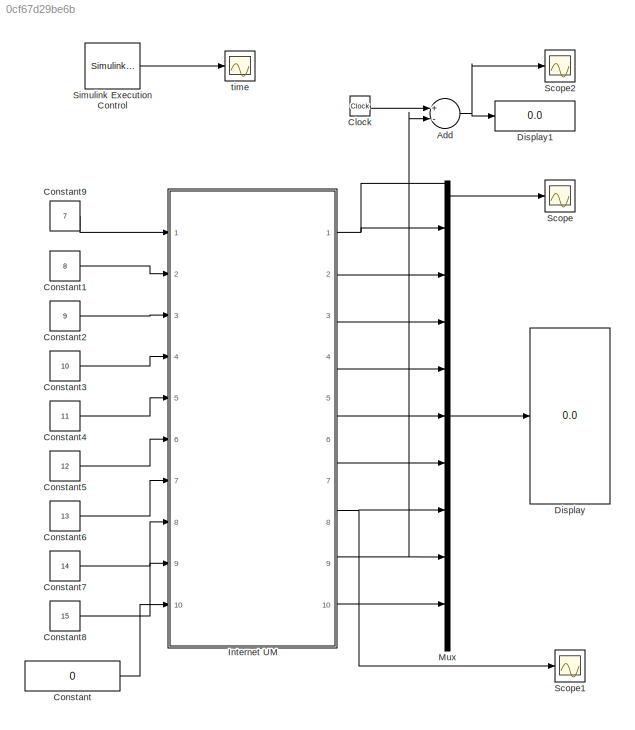
MODEL slx_0cf67d29be6b
KIND model
BLOCK [Sum] Add
  InputSameDT = off
  Inputs = +-
  OutDataTypeStr = Inherit: Inherit via internal rule
  Ports = [2, 1]
  SaturateOnIntegerOverflow = off
BLOCK [Clock] Clock
BLOCK [Constant] Constant
  Value = 0
BLOCK [Constant] Constant1
  Value = 8
BLOCK [Constant] Constant2
  Value = 9
BLOCK [Constant] Constant3
  Value = 10
BLOCK [Constant] Constant4
  Value = 11
BLOCK [Constant] Constant5
  Value = 12
BLOCK [Constant] Constant6
  Value = 13
BLOCK [Constant] Constant7
  Value = 14
BLOCK [Constant] Constant8
  Value = 15
BLOCK [Constant] Constant9
  Value = 7
BLOCK [Display] Display
  Decimation = 1
  Ports = [1]
BLOCK [Display] Display1
  Decimation = 1
  Ports = [1]
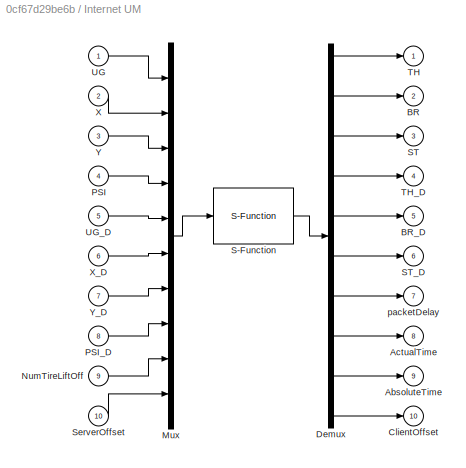
BLOCK [SubSystem] Internet UM
  Ports = [10, 10]
  RequestExecContextInheritance = off
BLOCK [Outport] Internet UM/AbsoluteTime
  IconDisplay = Port number
  Port = 9
BLOCK [Outport] Internet UM/ActualTime
  IconDisplay = Port number
  Port = 8
BLOCK [Outport] Internet UM/BR
  IconDisplay = Port number
  Port = 2
BLOCK [Outport] Internet UM/BR_D
  IconDisplay = Port number
  Port = 5
BLOCK [Outport] Internet UM/ClientOffset
  IconDisplay = Port number
  Port = 10
BLOCK [Demux] Internet UM/Demux
  DisplayOption = bar
  Outputs = 10
  Ports = [1, 10]
BLOCK [Mux] Internet UM/Mux
  DisplayOption = bar
  Inputs = 10
  Ports = [10, 1]
BLOCK [Inport] Internet UM/NumTireLiftOff
  IconDisplay = Port number
  Port = 9
BLOCK [Inport] Internet UM/PSI
  IconDisplay = Port number
  Port = 4
BLOCK [Inport] Internet UM/PSI_D
  IconDisplay = Port number
  Port = 8
BLOCK [S-Function] Internet UM/S-Function
  EnableBusSupport = off
  FunctionName = InternetUM
  Ports = [1, 1]
BLOCK [Outport] Internet UM/ST
  IconDisplay = Port number
  Port = 3
BLOCK [Outport] Internet UM/ST_D
  IconDisplay = Port number
  Port = 6
BLOCK [Inport] Internet UM/ServerOffset
  IconDisplay = Port number
  Port = 10
BLOCK [Outport] Internet UM/TH
  IconDisplay = Port number
BLOCK [Outport] Internet UM/TH_D
  IconDisplay = Port number
  Port = 4
BLOCK [Inport] Internet UM/UG
  IconDisplay = Port number
BLOCK [Inport] Internet UM/UG_D
  IconDisplay = Port number
  Port = 5
BLOCK [Inport] Internet UM/X
  IconDisplay = Port number
  Port = 2
BLOCK [Inport] Internet UM/X_D
  IconDisplay = Port number
  Port = 6
BLOCK [Inport] Internet UM/Y
  IconDisplay = Port number
  Port = 3
BLOCK [Inport] Internet UM/Y_D
  IconDisplay = Port number
  Port = 7
BLOCK [Outport] Internet UM/packetDelay
  IconDisplay = Port number
  Port = 7
BLOCK [Mux] Mux
  DisplayOption = bar
  Inputs = 9
  Ports = [9, 1]
BLOCK [Scope] Scope
  Floating = off
  LimitDataPoints = off
  NumInputPorts = 1
  Ports = [1]
  ShowLegends = off
BLOCK [Scope] Scope1
  Floating = off
  LimitDataPoints = off
  NumInputPorts = 1
  Ports = [1]
  SaveName = ScopeData1
  ShowLegends = off
BLOCK [Scope] Scope2
  Floating = off
  LimitDataPoints = off
  NumInputPorts = 1
  Ports = [1]
  SaveName = ScopeData2
  ShowLegends = off
  YMax = 0.05
  YMin = -0.12
BLOCK [Reference] Simulink Execution Control  REF=SimulinkExecutionControl/Simulink
Execution
Control
  Ports = [0, 1]
  SourceBlock = SimulinkExecutionControl/Simulink\nExecution\nControl
  SourceType = Simulink Execution Control V2.0
  Ts = -1
  factor = 1
  ovrrun = Continue execution
  proc_pri = REALTIME_PRIORITY_CLASS
  rt_sim = on
  thread_pri = THREAD_PRIORITY_TIME_CRITICAL
BLOCK [Scope] time
  Floating = off
  NumInputPorts = 1
  Ports = [1]
  SampleTime = 0
  SaveName = ScopeData4
  ShowLegends = off
  TickLabels = on
  YMax = 1.4075
  YMin = 1.375
  ZoomMode = xonly
NET Add:1 -> Display1:1, Scope2:1
LINE Clock:1 -> Add:1
LINE Constant1:1 -> Internet UM:2
LINE Constant2:1 -> Internet UM:3
LINE Constant3:1 -> Internet UM:4
LINE Constant4:1 -> Internet UM:5
LINE Constant5:1 -> Internet UM:6
LINE Constant6:1 -> Internet UM:7
LINE Constant7:1 -> Internet UM:8
LINE Constant8:1 -> Internet UM:9
LINE Constant9:1 -> Internet UM:1
LINE Constant:1 -> Internet UM:10
LINE Internet UM/Demux:1 -> Internet UM/TH:1
LINE Internet UM/Demux:10 -> Internet UM/ClientOffset:1
LINE Internet UM/Demux:2 -> Internet UM/BR:1
LINE Internet UM/Demux:3 -> Internet UM/ST:1
LINE Internet UM/Demux:4 -> Internet UM/TH_D:1
LINE Internet UM/Demux:5 -> Internet UM/BR_D:1
LINE Internet UM/Demux:6 -> Internet UM/ST_D:1
LINE Internet UM/Demux:7 -> Internet UM/packetDelay:1
LINE Internet UM/Demux:8 -> Internet UM/ActualTime:1
LINE Internet UM/Demux:9 -> Internet UM/AbsoluteTime:1
LINE Internet UM/Mux:1 -> Internet UM/S-Function:1
LINE Internet UM/NumTireLiftOff:1 -> Internet UM/Mux:9
LINE Internet UM/PSI:1 -> Internet UM/Mux:4
LINE Internet UM/PSI_D:1 -> Internet UM/Mux:8
LINE Internet UM/S-Function:1 -> Internet UM/Demux:1
LINE Internet UM/ServerOffset:1 -> Internet UM/Mux:10
LINE Internet UM/UG:1 -> Internet UM/Mux:1
LINE Internet UM/UG_D:1 -> Internet UM/Mux:5
LINE Internet UM/X:1 -> Internet UM/Mux:2
LINE Internet UM/X_D:1 -> Internet UM/Mux:6
LINE Internet UM/Y:1 -> Internet UM/Mux:3
LINE Internet UM/Y_D:1 -> Internet UM/Mux:7
NET Internet UM:1 -> Mux:1, Scope:1
LINE Internet UM:2 -> Mux:2
LINE Internet UM:3 -> Mux:3
LINE Internet UM:4 -> Mux:4
LINE Internet UM:5 -> Mux:5
LINE Internet UM:6 -> Mux:6
NET Internet UM:7 -> Mux:7, Scope1:1
NET Internet UM:8 -> Add:2, Mux:8
LINE Internet UM:9 -> Mux:9
LINE Mux:1 -> Display:1
LINE Simulink Execution Control:1 -> time:1
note: NET lines group one-source signal fan-out (src -> all destinations, sorted); 1:1 wires keep LINE
